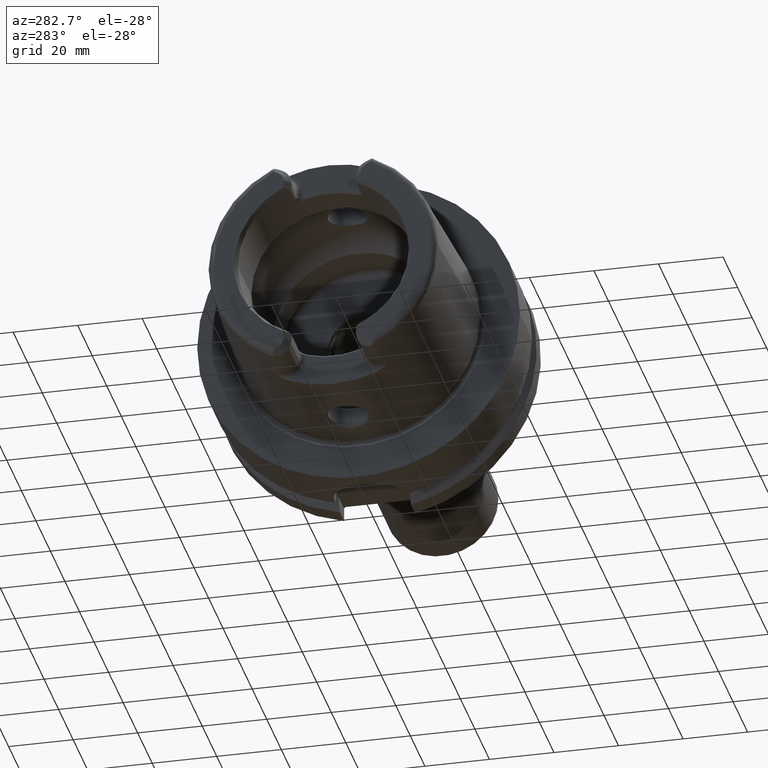
[diagram: clean part render]
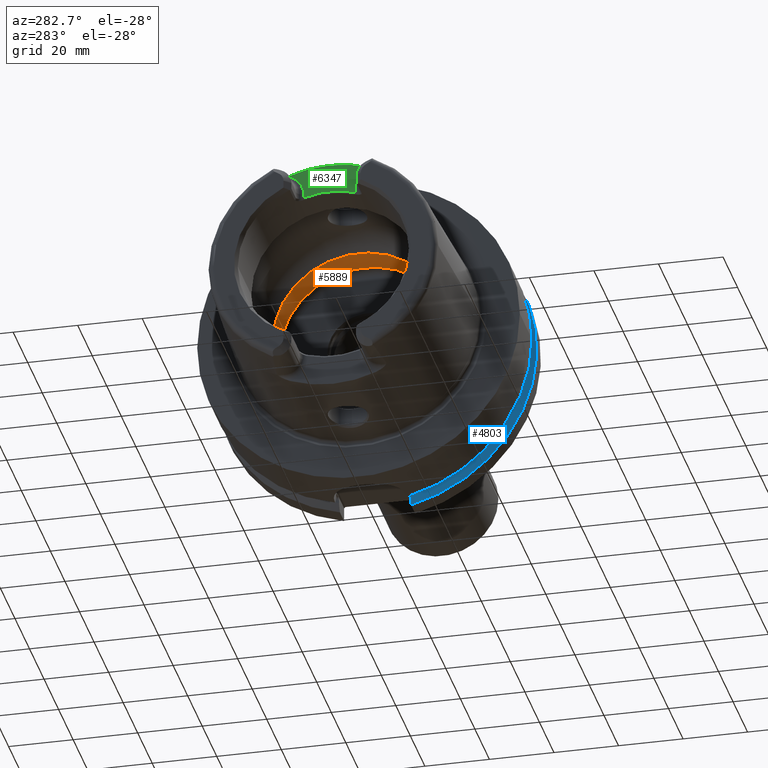
[diagram: same view with three faces highlighted in distinct colors, each labeled with its STEP entity id]
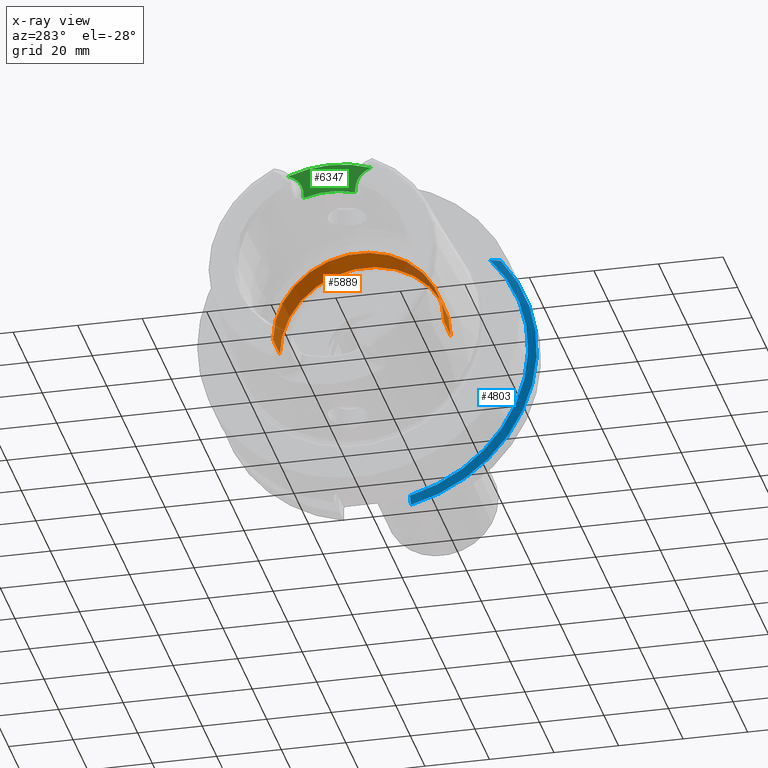
[diagram: x-ray of the same camera — body ghosted, the three highlighted faces saturated]
A machine part, auxiliary view with three faces highlighted in distinct colors.
The next image is the same camera in x-ray (body ghosted, the three faces saturated) — at least one of them is partly hidden behind the body in this view.
Their STEP definitions:

[orange] entity #5889 — the highlighted cylindrical surface (partial cylindrical patch) has radius 26.5 mm, axis along (1, 0, 0).
#2118=CARTESIAN_POINT('',(-1.E-1,0.E0,0.E0));
#2119=DIRECTION('',(1.E0,0.E0,0.E0));
#2120=DIRECTION('',(0.E0,1.E0,0.E0));
#2121=AXIS2_PLACEMENT_3D('',#2118,#2119,#2120);
#2280=DIRECTION('',(-1.E0,0.E0,0.E0));
#2281=VECTOR('',#2280,9.4E0);
#2282=CARTESIAN_POINT('',(9.3E0,2.65E1,0.E0));
#2283=LINE('',#2282,#2281);
#2289=DIRECTION('',(-1.E0,0.E0,0.E0));
#2290=VECTOR('',#2289,9.4E0);
#2291=CARTESIAN_POINT('',(9.3E0,-2.65E1,0.E0));
#2292=LINE('',#2291,#2290);
#2293=CARTESIAN_POINT('',(9.3E0,0.E0,0.E0));
#2294=DIRECTION('',(1.E0,0.E0,0.E0));
#2295=DIRECTION('',(0.E0,1.E0,0.E0));
#2296=AXIS2_PLACEMENT_3D('',#2293,#2294,#2295);
#2764=CARTESIAN_POINT('',(9.3E0,2.65E1,0.E0));
#2766=VERTEX_POINT('',#2764);
#2768=CARTESIAN_POINT('',(9.3E0,-2.65E1,0.E0));
#2770=VERTEX_POINT('',#2768);
#2771=CARTESIAN_POINT('',(-1.E-1,2.65E1,0.E0));
#2772=VERTEX_POINT('',#2771);
#2783=CARTESIAN_POINT('',(-1.E-1,-2.65E1,0.E0));
#2784=VERTEX_POINT('',#2783);
#5877=CARTESIAN_POINT('',(-5.3125E1,0.E0,0.E0));
#5878=DIRECTION('',(1.E0,0.E0,0.E0));
#5879=DIRECTION('',(0.E0,-1.E0,0.E0));
#5880=AXIS2_PLACEMENT_3D('',#5877,#5878,#5879);
#5881=CYLINDRICAL_SURFACE('',#5880,2.65E1);
#5882=ORIENTED_EDGE('',*,*,#5867,.T.);
#5883=ORIENTED_EDGE('',*,*,#5801,.T.);
#5884=ORIENTED_EDGE('',*,*,#5871,.F.);
#5886=ORIENTED_EDGE('',*,*,#5885,.F.);
#5887=EDGE_LOOP('',(#5882,#5883,#5884,#5886));
#5888=FACE_OUTER_BOUND('',#5887,.F.);
#5889=ADVANCED_FACE('',(#5888),#5881,.F.);
#2122=CIRCLE('',#2121,2.65E1);
#2297=CIRCLE('',#2296,2.65E1);
#5801=EDGE_CURVE('',#2772,#2784,#2122,.T.);
#5867=EDGE_CURVE('',#2766,#2772,#2283,.T.);
#5871=EDGE_CURVE('',#2770,#2784,#2292,.T.);
#5885=EDGE_CURVE('',#2766,#2770,#2297,.T.);

[blue] entity #4803 — the highlighted conical surface has half-angle 60 deg.
#1670=CARTESIAN_POINT('',(2.1875E1,-3.571640491003E1,3.15E1));
#1671=CARTESIAN_POINT('',(2.201925574841E1,-3.604955434192E1,3.15E1));
#1672=CARTESIAN_POINT('',(2.231322476087E1,-3.672437326077E1,3.15E1));
#1673=CARTESIAN_POINT('',(2.277010201186E1,-3.776083400964E1,3.15E1));
#1674=CARTESIAN_POINT('',(2.308650936123E1,-3.847048452534E1,3.15E1));
#1675=CARTESIAN_POINT('',(2.324759526419E1,-3.882975663071E1,3.15E1));
#1677=CARTESIAN_POINT('',(2.324759526419E1,0.E0,0.E0));
#1678=DIRECTION('',(1.E0,0.E0,0.E0));
#1679=DIRECTION('',(0.E0,-7.765951326142E-1,6.3E-1));
#1680=AXIS2_PLACEMENT_3D('',#1677,#1678,#1679);
#1682=CARTESIAN_POINT('',(2.1875E1,-1.1E1,-4.633477721644E1));
#1683=CARTESIAN_POINT('',(2.202318700409E1,-1.1E1,-4.659857839127E1));
#1684=CARTESIAN_POINT('',(2.232244181881E1,-1.1E1,-4.713106867413E1));
#1685=CARTESIAN_POINT('',(2.277988963764E1,-1.1E1,-4.794432689775E1));
#1686=CARTESIAN_POINT('',(2.309072380685E1,-1.1E1,-4.849646015371E1));
#1687=CARTESIAN_POINT('',(2.324759526419E1,-1.1E1,-4.877499359303E1));
#1689=CARTESIAN_POINT('',(2.1875E1,0.E0,0.E0));
#1690=DIRECTION('',(-1.E0,0.E0,0.E0));
#1691=DIRECTION('',(0.E0,-2.309827916554E-1,-9.729578356533E-1));
#1692=AXIS2_PLACEMENT_3D('',#1689,#1690,#1691);
#3044=CARTESIAN_POINT('',(2.324759526419E1,-1.1E1,-4.877499359303E1));
#3046=VERTEX_POINT('',#3044);
#3066=CARTESIAN_POINT('',(2.1875E1,-1.1E1,-4.633477721644E1));
#3067=VERTEX_POINT('',#3066);
#3094=CARTESIAN_POINT('',(2.324759526419E1,-3.882975663071E1,3.15E1));
#3096=VERTEX_POINT('',#3094);
#3118=CARTESIAN_POINT('',(2.1875E1,-3.571640491003E1,3.15E1));
#3119=VERTEX_POINT('',#3118);
#4792=CARTESIAN_POINT('',(2.256129763210E1,0.E0,0.E0));
#4793=DIRECTION('',(1.E0,0.E0,0.E0));
#4794=DIRECTION('',(0.E0,-1.E0,0.E0));
#4795=AXIS2_PLACEMENT_3D('',#4792,#4793,#4794);
#4796=CONICAL_SURFACE('',#4795,4.881129763210E1,6.E1);
#4797=ORIENTED_EDGE('',*,*,#4312,.T.);
#4798=ORIENTED_EDGE('',*,*,#4355,.T.);
#4799=ORIENTED_EDGE('',*,*,#4506,.F.);
#4800=ORIENTED_EDGE('',*,*,#4757,.T.);
#4801=EDGE_LOOP('',(#4797,#4798,#4799,#4800));
#4802=FACE_OUTER_BOUND('',#4801,.F.);
#4803=ADVANCED_FACE('',(#4802),#4796,.T.);
#1676=B_SPLINE_CURVE_WITH_KNOTS('',3,(#1670,#1671,#1672,#1673,#1674,#1675),
.UNSPECIFIED.,.F.,.F.,(4,1,1,4),(0.E0,3.333333333333E-1,6.666666666667E-1,1.E0),
.UNSPECIFIED.);
#1681=CIRCLE('',#1680,5.E1);
#1688=B_SPLINE_CURVE_WITH_KNOTS('',3,(#1682,#1683,#1684,#1685,#1686,#1687),
.UNSPECIFIED.,.F.,.F.,(4,1,1,4),(0.E0,3.333333333333E-1,6.666666666667E-1,1.E0),
.UNSPECIFIED.);
#1693=CIRCLE('',#1692,4.762259526419E1);
#4312=EDGE_CURVE('',#3119,#3096,#1676,.T.);
#4355=EDGE_CURVE('',#3096,#3046,#1681,.T.);
#4506=EDGE_CURVE('',#3067,#3046,#1688,.T.);
#4757=EDGE_CURVE('',#3067,#3119,#1693,.T.);

[green] entity #6347 — the highlighted planar face has unit normal (-1, 0, 0).
#9=CARTESIAN_POINT('',(-4.E1,0.E0,0.E0));
#10=DIRECTION('',(1.E0,0.E0,0.E0));
#11=DIRECTION('',(0.E0,3.574556786365E-1,9.339301032789E-1));
#12=AXIS2_PLACEMENT_3D('',#9,#10,#11);
#2586=DIRECTION('',(0.E0,5.174062213620E-12,1.E0));
#2587=VECTOR('',#2586,1.199558594508E0);
#2588=CARTESIAN_POINT('',(-4.E1,8.009999999994E0,2.576044140549E1));
#2589=LINE('',#2588,#2587);
#2590=CARTESIAN_POINT('',(-4.E1,1.501E1,2.696E1));
#2591=DIRECTION('',(-1.E0,0.E0,0.E0));
#2592=DIRECTION('',(0.E0,-1.E0,0.E0));
#2593=AXIS2_PLACEMENT_3D('',#2590,#2591,#2592);
#2595=CARTESIAN_POINT('',(-4.E1,-1.501E1,2.696E1));
#2596=DIRECTION('',(-1.E0,0.E0,0.E0));
#2597=DIRECTION('',(0.E0,3.057634963159E-1,9.521074962002E-1));
#2598=AXIS2_PLACEMENT_3D('',#2595,#2596,#2597);
#2600=DIRECTION('',(0.E0,6.866664706538E-12,-1.E0));
#2601=VECTOR('',#2600,1.199558594503E0);
#2602=CARTESIAN_POINT('',(-4.E1,-8.010000000001E0,2.695999999999E1));
#2603=LINE('',#2602,#2601);
#2604=CARTESIAN_POINT('',(-4.E1,8.009999999994E0,2.576044140549E1));
#2605=CARTESIAN_POINT('',(-4.E1,7.269616392493E0,2.599521452766E1));
#2606=CARTESIAN_POINT('',(-4.E1,5.774680607733E0,2.639793295020E1));
#2607=CARTESIAN_POINT('',(-4.E1,3.481759859025E0,2.680464578135E1));
#2608=CARTESIAN_POINT('',(-4.E1,1.163574268407E0,2.700848033442E1));
#2609=CARTESIAN_POINT('',(-4.E1,-1.163574229637E0,2.700848033529E1));
#2610=CARTESIAN_POINT('',(-4.E1,-3.481759771637E0,2.680464579107E1));
#2611=CARTESIAN_POINT('',(-4.E1,-5.774680487919E0,2.639793297771E1));
#2612=CARTESIAN_POINT('',(-4.E1,-7.269616343063E0,2.599521454333E1));
#2613=CARTESIAN_POINT('',(-4.E1,-8.009999999993E0,2.576044140549E1));
#2799=CARTESIAN_POINT('',(-4.E1,8.01E0,2.696E1));
#2801=VERTEX_POINT('',#2799);
#2803=CARTESIAN_POINT('',(-4.E1,-8.01E0,2.696E1));
#2805=VERTEX_POINT('',#2803);
#2807=CARTESIAN_POINT('',(-4.E1,1.286965552579E1,3.362475247340E1));
#2808=VERTEX_POINT('',#2807);
#2813=CARTESIAN_POINT('',(-4.E1,-1.286965552579E1,3.362475247340E1));
#2814=VERTEX_POINT('',#2813);
#2855=CARTESIAN_POINT('',(-4.E1,8.009999999994E0,2.576044140549E1));
#2856=VERTEX_POINT('',#2855);
#2857=CARTESIAN_POINT('',(-4.E1,-8.009999999993E0,2.576044140549E1));
#2858=VERTEX_POINT('',#2857);
#6332=CARTESIAN_POINT('',(-4.E1,0.E0,0.E0));
#6333=DIRECTION('',(-1.E0,0.E0,0.E0));
#6334=DIRECTION('',(0.E0,0.E0,1.E0));
#6335=AXIS2_PLACEMENT_3D('',#6332,#6333,#6334);
#6336=PLANE('',#6335);
#6337=ORIENTED_EDGE('',*,*,#3425,.T.);
#6338=ORIENTED_EDGE('',*,*,#3443,.T.);
#6339=ORIENTED_EDGE('',*,*,#3210,.T.);
#6341=ORIENTED_EDGE('',*,*,#6340,.T.);
#6343=ORIENTED_EDGE('',*,*,#6342,.T.);
#6344=ORIENTED_EDGE('',*,*,#6323,.F.);
#6345=EDGE_LOOP('',(#6337,#6338,#6339,#6341,#6343,#6344));
#6346=FACE_OUTER_BOUND('',#6345,.F.);
#6347=ADVANCED_FACE('',(#6346),#6336,.T.);
#13=CIRCLE('',#12,3.60035E1);
#2594=CIRCLE('',#2593,7.E0);
#2599=CIRCLE('',#2598,7.E0);
#2614=B_SPLINE_CURVE_WITH_KNOTS('',3,(#2604,#2605,#2606,#2607,#2608,#2609,#2610,
#2611,#2612,#2613),.UNSPECIFIED.,.F.,.F.,(4,1,1,1,1,1,1,4),(0.E0,
1.428571428571E-1,2.857142857143E-1,4.285714285714E-1,5.714285714286E-1,
7.142857142857E-1,8.571428571429E-1,1.E0),.UNSPECIFIED.);
#3210=EDGE_CURVE('',#2808,#2814,#13,.T.);
#3425=EDGE_CURVE('',#2856,#2801,#2589,.T.);
#3443=EDGE_CURVE('',#2801,#2808,#2594,.T.);
#6323=EDGE_CURVE('',#2856,#2858,#2614,.T.);
#6340=EDGE_CURVE('',#2814,#2805,#2599,.T.);
#6342=EDGE_CURVE('',#2805,#2858,#2603,.T.);